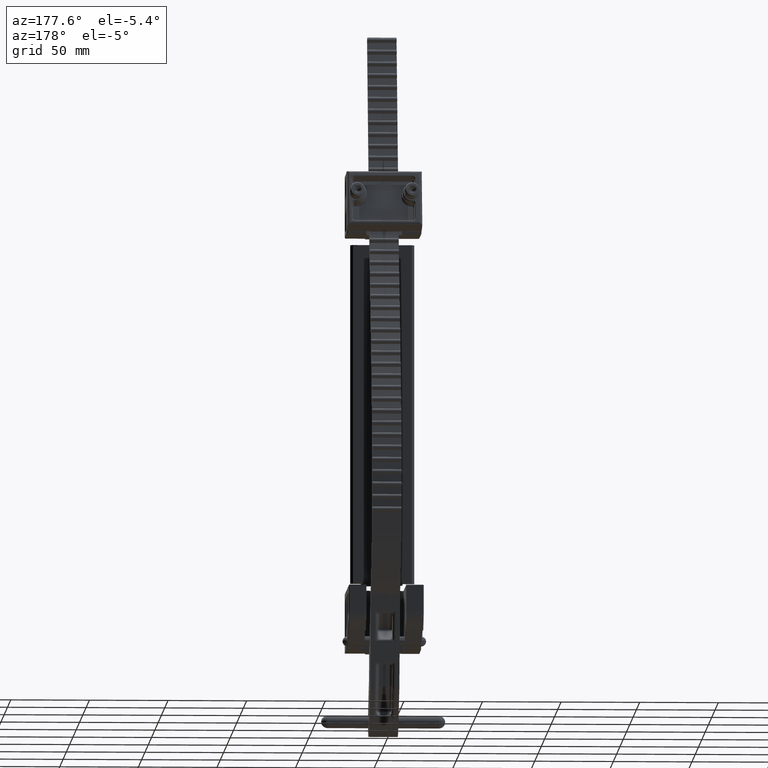
[diagram: clean part render]
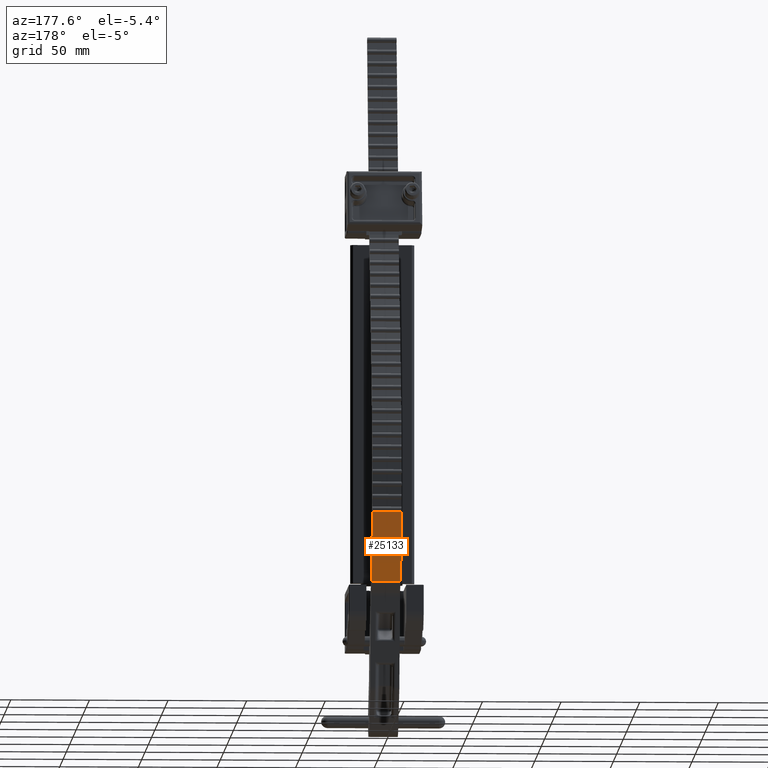
[diagram: same view with one face highlighted and labeled with its STEP entity id]
A machine part, auxiliary view. The second image highlights one B-rep face of the part: STEP entity #25133.
In plain terms, the highlighted face is a freeform B-spline surface patch.
Its self-contained STEP definition (entity closure, byte-faithful):
#373 = ORIENTED_EDGE ( 'NONE', *, *, #4014, .T. ) ;
#477 = CARTESIAN_POINT ( 'NONE',  ( -4.918692339800991000, -0.7820699130692944100, 0.3649999999999997100 ) ) ;
#707 = VERTEX_POINT ( 'NONE', #6890 ) ;
#1018 = CARTESIAN_POINT ( 'NONE',  ( -3.703076168339255200, -0.6250000000000000000, -0.3649999999999982100 ) ) ;
#1156 = B_SPLINE_SURFACE_WITH_KNOTS ( 'NONE', 3, 1, ( 
 ( #6353, #1018 ),
 ( #32246, #16799 ),
 ( #1252, #19395 ),
 ( #3858, #22006 ) ),
 .UNSPECIFIED., .F., .F., .F.,
 ( 4, 4 ),
 ( 2, 2 ),
 ( 0.0000000000000000000, 0.1957811571432745400 ),
 ( 0.0000000000000000000, 1.000000000000000000 ),
 .UNSPECIFIED. ) ;
#1252 = CARTESIAN_POINT ( 'NONE',  ( -4.918692339558199400, -0.7820699130039765500, 0.3649999999999997100 ) ) ;
#1802 = ORIENTED_EDGE ( 'NONE', *, *, #8878, .T. ) ;
#2692 = VECTOR ( 'NONE', #23264, 39.37007874015748100 ) ;
#2715 = VERTEX_POINT ( 'NONE', #5979 ) ;
#3858 = CARTESIAN_POINT ( 'NONE',  ( -5.459624250293720700, -1.048495023859941100, 0.3649999999999997100 ) ) ;
#4014 = EDGE_CURVE ( 'NONE', #707, #21174, #23398, .T. ) ;
#5104 = CARTESIAN_POINT ( 'NONE',  ( -3.703076168339255200, -0.6250000000000000000, 0.3649999999999997100 ) ) ;
#5979 = CARTESIAN_POINT ( 'NONE',  ( -5.459624250631037500, -1.048495024026079100, 0.3649999999999998800 ) ) ;
#6353 = CARTESIAN_POINT ( 'NONE',  ( -3.703076168339255200, -0.6250000000000000000, 0.3649999999999997100 ) ) ;
#6890 = CARTESIAN_POINT ( 'NONE',  ( -3.703076168339255200, -0.6250000000000000000, 0.3649999999999997100 ) ) ;
#8084 = EDGE_CURVE ( 'NONE', #707, #2715, #15857, .T. ) ;
#8191 = CARTESIAN_POINT ( 'NONE',  ( -3.703076168339255200, -0.6250000000000000000, 0.3649999999999997100 ) ) ;
#8490 = EDGE_CURVE ( 'NONE', #24520, #2715, #28524, .T. ) ;
#8878 = EDGE_CURVE ( 'NONE', #21174, #24520, #13340, .T. ) ;
#9732 = FACE_OUTER_BOUND ( 'NONE', #15477, .T. ) ;
#9879 = DIRECTION ( 'NONE',  ( -3.081487911019580100E-032, 5.238529448733285900E-032, 1.000000000000000000 ) ) ;
#10800 = CARTESIAN_POINT ( 'NONE',  ( -4.334850543584789100, -0.6250000000000000000, 0.3649999999999997100 ) ) ;
#11534 = CARTESIAN_POINT ( 'NONE',  ( -4.918692339800991000, -0.7820699130692944100, -0.3649999999999996600 ) ) ;
#13109 = ORIENTED_EDGE ( 'NONE', *, *, #8490, .T. ) ;
#13340 = B_SPLINE_CURVE_WITH_KNOTS ( 'NONE', 3,
 ( #14155, #21867, #11534, #16769 ),
 .UNSPECIFIED., .F., .F.,
 ( 4, 4 ),
 ( 0.0000000000000000000, 0.1957811571839823700 ),
 .UNSPECIFIED. ) ;
#14155 = CARTESIAN_POINT ( 'NONE',  ( -3.703076168339255200, -0.6250000000000000000, -0.3649999999999997100 ) ) ;
#15477 = EDGE_LOOP ( 'NONE', ( #1802, #13109, #16861, #373 ) ) ;
#15685 = CARTESIAN_POINT ( 'NONE',  ( -3.703076168339255200, -0.6250000000000000000, -0.3649999999999997100 ) ) ;
#15857 = B_SPLINE_CURVE_WITH_KNOTS ( 'NONE', 3,
 ( #8191, #10800, #477, #18638 ),
 .UNSPECIFIED., .F., .F.,
 ( 4, 4 ),
 ( 0.0000000000000000000, 0.1957811571839823700 ),
 .UNSPECIFIED. ) ;
#16769 = CARTESIAN_POINT ( 'NONE',  ( -5.459624250631037500, -1.048495024026079100, -0.3649999999999996000 ) ) ;
#16799 = CARTESIAN_POINT ( 'NONE',  ( -4.334850543453426600, -0.6250000000000000000, -0.3649999999999982100 ) ) ;
#16861 = ORIENTED_EDGE ( 'NONE', *, *, #8084, .F. ) ;
#18638 = CARTESIAN_POINT ( 'NONE',  ( -5.459624250631037500, -1.048495024026079100, 0.3649999999999998800 ) ) ;
#19395 = CARTESIAN_POINT ( 'NONE',  ( -4.918692339558199400, -0.7820699130039765500, -0.3649999999999982100 ) ) ;
#20190 = CARTESIAN_POINT ( 'NONE',  ( -5.459624250630975300, -1.048495024026048000, 0.3649999999999998800 ) ) ;
#21174 = VERTEX_POINT ( 'NONE', #15685 ) ;
#21660 = VECTOR ( 'NONE', #9879, 39.37007874015748100 ) ;
#21867 = CARTESIAN_POINT ( 'NONE',  ( -4.334850543584789100, -0.6250000000000000000, -0.3649999999999996600 ) ) ;
#22006 = CARTESIAN_POINT ( 'NONE',  ( -5.459624250293720700, -1.048495023859941100, -0.3649999999999982100 ) ) ;
#23264 = DIRECTION ( 'NONE',  ( 3.081487911019580100E-032, -5.238529448733285900E-032, -1.000000000000000000 ) ) ;
#23398 = LINE ( 'NONE', #5104, #2692 ) ;
#24520 = VERTEX_POINT ( 'NONE', #26903 ) ;
#25133 = ADVANCED_FACE ( 'NONE', ( #9732 ), #1156, .F. ) ;
#26903 = CARTESIAN_POINT ( 'NONE',  ( -5.459624250631037500, -1.048495024026079100, -0.3649999999999996000 ) ) ;
#28524 = LINE ( 'NONE', #20190, #21660 ) ;
#32246 = CARTESIAN_POINT ( 'NONE',  ( -4.334850543453426600, -0.6250000000000000000, 0.3649999999999997100 ) ) ;